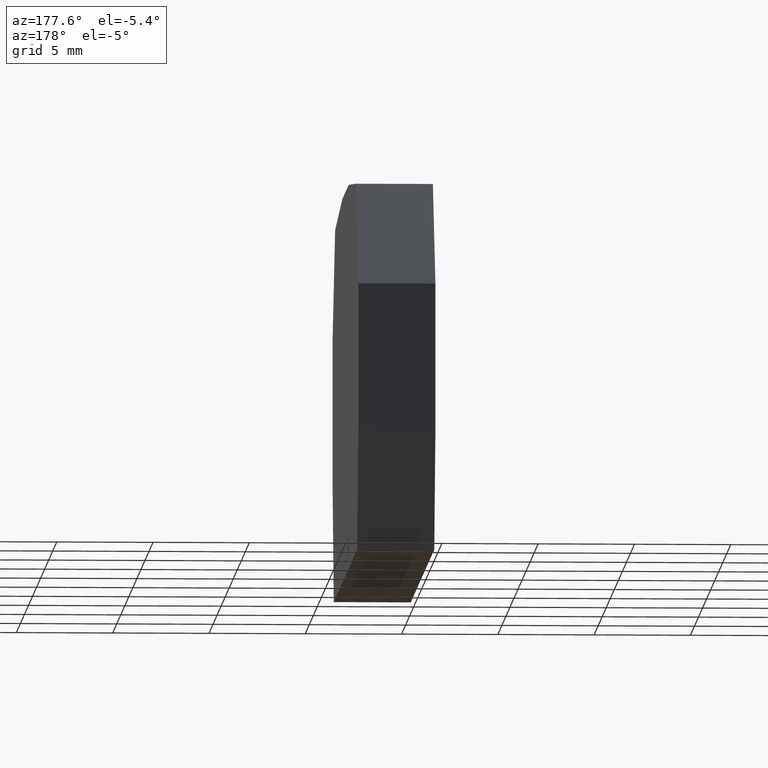
[diagram: clean part render]
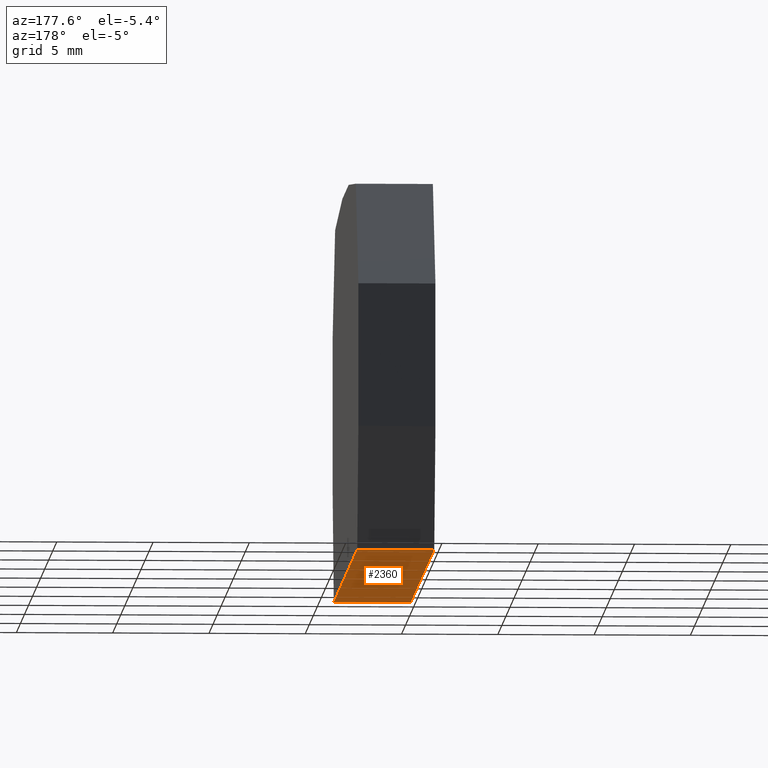
[diagram: same view with one face highlighted and labeled with its STEP entity id]
A machine part, auxiliary view. The second image highlights one B-rep face of the part: STEP entity #2360.
In plain terms, the highlighted planar face has unit normal (0, 0, -1).
Its self-contained STEP definition (entity closure, byte-faithful):
#100=CARTESIAN_POINT('',(37.0173254335857,66.9430584408326,
4.00000000000001));
#110=VERTEX_POINT('',#100);
#760=CARTESIAN_POINT('',(7.92626464177793,66.9430584408525,
4.00000000000001));
#770=VERTEX_POINT('',#760);
#800=CARTESIAN_POINT('',(20.2091964718262,66.9430584408441,
4.00000000000001));
#810=DIRECTION('',(-1.,6.82232048632159E-13,0.));
#820=VECTOR('',#810,1.);
#830=LINE('',#800,#820);
#840=EDGE_CURVE('',#110,#770,#830,.T.);
#1010=CARTESIAN_POINT('',(20.2091964718262,66.9430584408441,
8.00000000000001));
#1020=DIRECTION('',(-1.,6.82232048632159E-13,0.));
#1030=VECTOR('',#1020,1.);
#1040=LINE('',#1010,#1030);
#1050=CARTESIAN_POINT('',(37.0173254335857,66.9430584408326,
8.00000000000001));
#1060=VERTEX_POINT('',#1050);
#1070=CARTESIAN_POINT('',(7.92626464177793,66.9430584408525,
8.00000000000001));
#1080=VERTEX_POINT('',#1070);
#1090=EDGE_CURVE('',#1060,#1080,#1040,.T.);
#2040=CARTESIAN_POINT('',(7.92626464177794,66.9430584408525,
4.00000000000001));
#2050=DIRECTION('',(0.,0.,-1.));
#2060=VECTOR('',#2050,1.);
#2070=LINE('',#2040,#2060);
#2080=EDGE_CURVE('',#1080,#770,#2070,.T.);
#2200=CARTESIAN_POINT('',(36.2218895169183,66.9430584408332,
4.00000000000001));
#2210=DIRECTION('',(-6.82232048632159E-13,-1.,-0.));
#2220=DIRECTION('',(-1.,6.82232048632159E-13,0.));
#2230=AXIS2_PLACEMENT_3D('',#2200,#2210,#2220);
#2240=PLANE('',#2230);
#2250=ORIENTED_EDGE('',*,*,#840,.F.);
#2260=ORIENTED_EDGE('',*,*,#2080,.T.);
#2270=ORIENTED_EDGE('',*,*,#1090,.T.);
#2280=CARTESIAN_POINT('',(37.0173254335857,66.9430584408326,
4.00000000000001));
#2290=DIRECTION('',(0.,0.,-1.));
#2300=VECTOR('',#2290,1.);
#2310=LINE('',#2280,#2300);
#2320=EDGE_CURVE('',#1060,#110,#2310,.T.);
#2330=ORIENTED_EDGE('',*,*,#2320,.F.);
#2340=EDGE_LOOP('',(#2330,#2270,#2260,#2250));
#2350=FACE_OUTER_BOUND('',#2340,.T.);
#2360=ADVANCED_FACE('',(#2350),#2240,.T.);